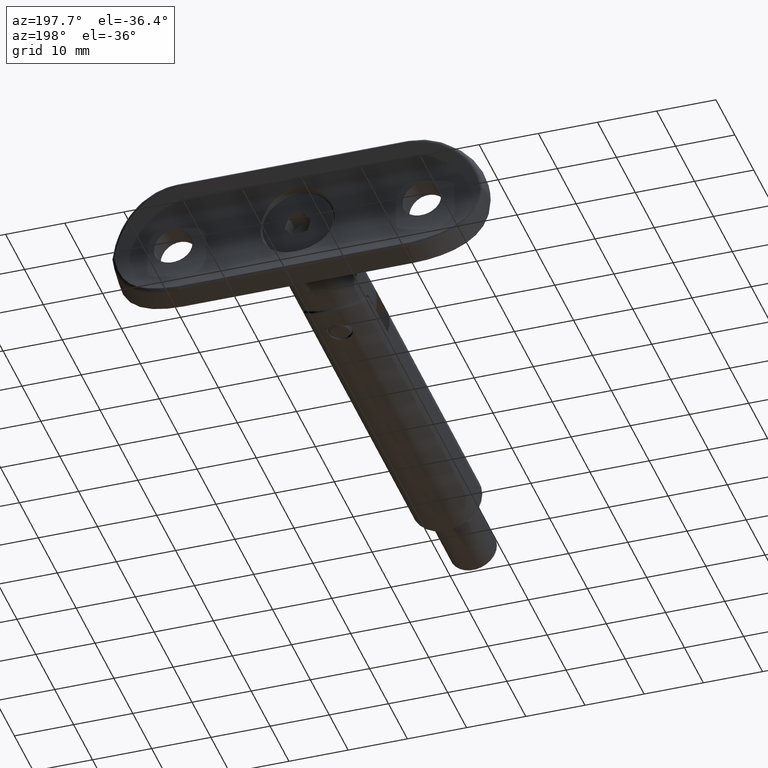
[diagram: clean part render]
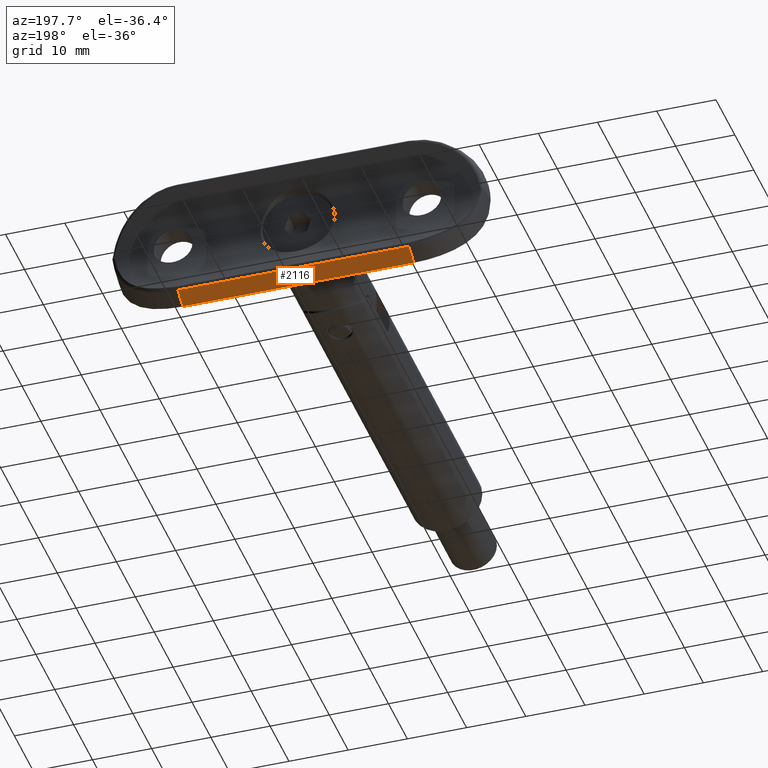
[diagram: same view with one face highlighted and labeled with its STEP entity id]
A machine part, auxiliary view. The second image highlights one B-rep face of the part: STEP entity #2116.
In plain terms, the highlighted planar face has unit normal (-0, 0.4858, -0.8741).
Its self-contained STEP definition (entity closure, byte-faithful):
#108 = DIRECTION ( 'NONE',  ( 0.4858299595141704064, 0.8740533453047699686, -0.000000000000000000 ) ) ;
#383 = ORIENTED_EDGE ( 'NONE', *, *, #5050, .F. ) ;
#547 = EDGE_LOOP ( 'NONE', ( #13978, #4066, #4963, #383 ) ) ;
#736 = PLANE ( 'NONE',  #3201 ) ;
#2029 = LINE ( 'NONE', #6633, #15484 ) ;
#2100 = VECTOR ( 'NONE', #15290, 1000.000000000000000 ) ;
#2116 = ADVANCED_FACE ( 'NONE', ( #14772 ), #736, .T. ) ;
#2557 = CARTESIAN_POINT ( 'NONE',  ( -10.53971119023871772, 2.238077944829623522, 19.50000000000000000 ) ) ;
#3201 = AXIS2_PLACEMENT_3D ( 'NONE', #6881, #10692, #4492 ) ;
#3209 = VERTEX_POINT ( 'NONE', #7615 ) ;
#3499 = CARTESIAN_POINT ( 'NONE',  ( -12.00000000000000178, -0.3891176290278255956, -19.50000000000000000 ) ) ;
#4066 = ORIENTED_EDGE ( 'NONE', *, *, #15959, .T. ) ;
#4492 = DIRECTION ( 'NONE',  ( -0.4858299595141704064, -0.8740533453047699686, 0.000000000000000000 ) ) ;
#4963 = ORIENTED_EDGE ( 'NONE', *, *, #15577, .T. ) ;
#5050 = EDGE_CURVE ( 'NONE', #7511, #6681, #2029, .T. ) ;
#5182 = VECTOR ( 'NONE', #5953, 1000.000000000000114 ) ;
#5579 = EDGE_CURVE ( 'NONE', #7511, #6708, #9431, .T. ) ;
#5953 = DIRECTION ( 'NONE',  ( -0.4858299595141704064, -0.8740533453047699686, -0.000000000000000000 ) ) ;
#6633 = CARTESIAN_POINT ( 'NONE',  ( -12.00000000000000711, -0.3891176290278207661, 31.50000000000000000 ) ) ;
#6681 = VERTEX_POINT ( 'NONE', #10060 ) ;
#6708 = VERTEX_POINT ( 'NONE', #2557 ) ;
#6881 = CARTESIAN_POINT ( 'NONE',  ( -12.00000000000000178, -0.3891176290278242078, 31.50000000000000000 ) ) ;
#7511 = VERTEX_POINT ( 'NONE', #13048 ) ;
#7615 = CARTESIAN_POINT ( 'NONE',  ( -10.53971119023871772, 2.238077944829623078, -19.50000000000000000 ) ) ;
#7673 = DIRECTION ( 'NONE',  ( -0.000000000000000000, -0.000000000000000000, -1.000000000000000000 ) ) ;
#7730 = CARTESIAN_POINT ( 'NONE',  ( -10.53971119023871772, 2.238077944829623078, 31.50000000000000000 ) ) ;
#9431 = LINE ( 'NONE', #11213, #11380 ) ;
#10060 = CARTESIAN_POINT ( 'NONE',  ( -12.00000000000000711, -0.3891176290278207661, -19.50000000000000355 ) ) ;
#10237 = LINE ( 'NONE', #3499, #5182 ) ;
#10665 = LINE ( 'NONE', #7730, #2100 ) ;
#10692 = DIRECTION ( 'NONE',  ( -0.8740533453047700796, 0.4858299595141704619, 0.000000000000000000 ) ) ;
#11213 = CARTESIAN_POINT ( 'NONE',  ( -12.00000000000000178, -0.3891176290278242078, 19.50000000000000000 ) ) ;
#11380 = VECTOR ( 'NONE', #108, 1000.000000000000114 ) ;
#13048 = CARTESIAN_POINT ( 'NONE',  ( -12.00000000000000711, -0.3891176290278207661, 19.50000000000000000 ) ) ;
#13978 = ORIENTED_EDGE ( 'NONE', *, *, #5579, .T. ) ;
#14772 = FACE_OUTER_BOUND ( 'NONE', #547, .T. ) ;
#15290 = DIRECTION ( 'NONE',  ( 0.000000000000000000, 0.000000000000000000, -1.000000000000000000 ) ) ;
#15484 = VECTOR ( 'NONE', #7673, 1000.000000000000000 ) ;
#15577 = EDGE_CURVE ( 'NONE', #3209, #6681, #10237, .T. ) ;
#15959 = EDGE_CURVE ( 'NONE', #6708, #3209, #10665, .T. ) ;